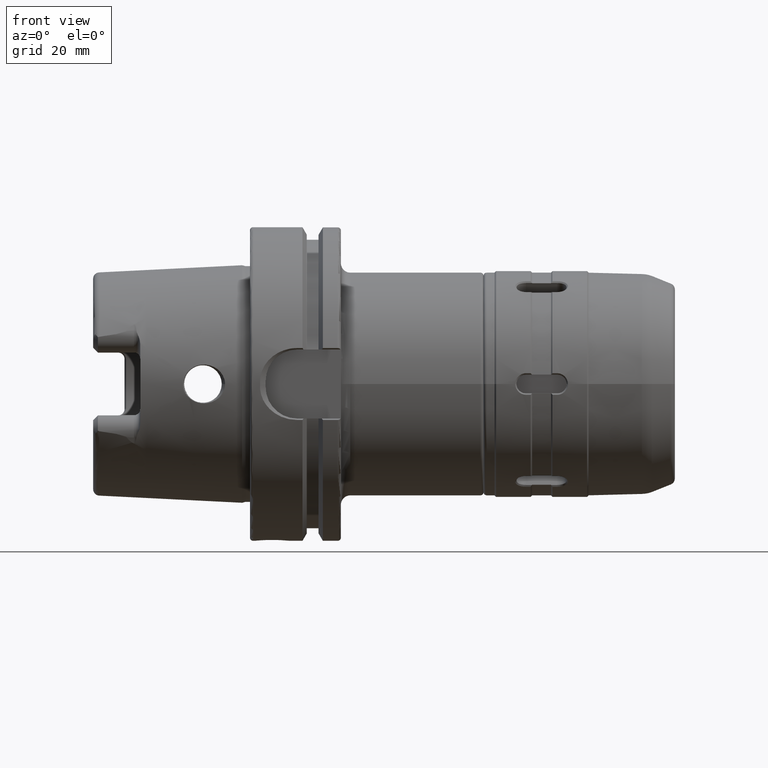
[diagram: clean part render]
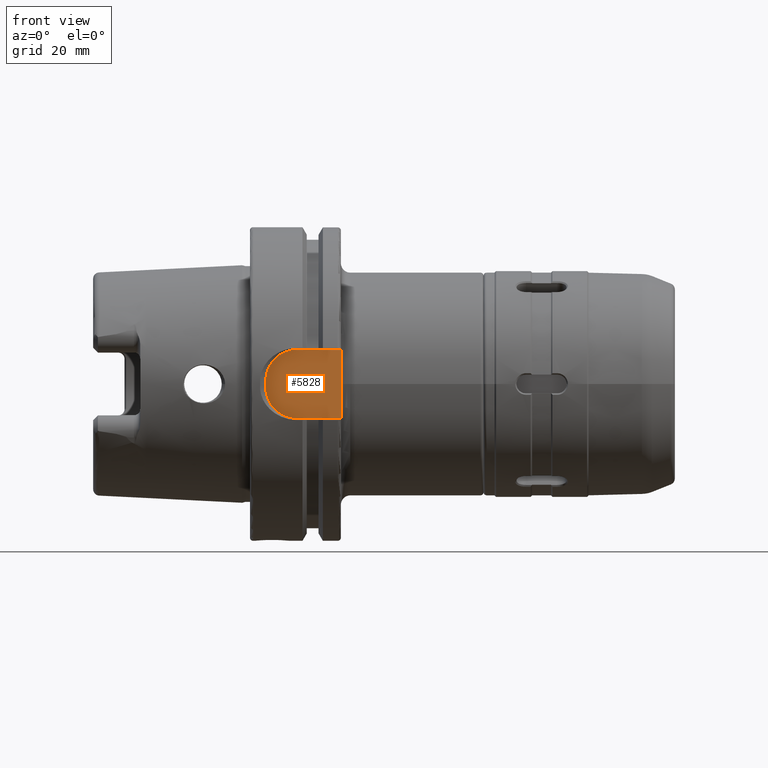
[diagram: same view with one face highlighted and labeled with its STEP entity id]
A machine part, front view. The second image highlights one B-rep face of the part: STEP entity #5828.
In plain terms, the highlighted planar face has unit normal (0, -1, 0).
Its self-contained STEP definition (entity closure, byte-faithful):
#1096=DIRECTION('',(0.E0,0.E0,1.E0));
#1097=VECTOR('',#1096,8.661417322835E-1);
#1098=CARTESIAN_POINT('',(1.141732283465E0,-1.732283464567E0,
-4.330708661417E-1));
#1099=LINE('',#1098,#1097);
#2284=CARTESIAN_POINT('',(5.905511811024E-1,-1.732283464567E0,
3.937007874016E-2));
#2285=DIRECTION('',(0.E0,-1.E0,0.E0));
#2286=DIRECTION('',(0.E0,0.E0,1.E0));
#2287=AXIS2_PLACEMENT_3D('',#2284,#2285,#2286);
#2289=DIRECTION('',(-1.E0,0.E0,0.E0));
#2290=VECTOR('',#2289,5.511811023622E-1);
#2291=CARTESIAN_POINT('',(1.141732283465E0,-1.732283464567E0,
4.330708661417E-1));
#2292=LINE('',#2291,#2290);
#2293=DIRECTION('',(1.E0,0.E0,0.E0));
#2294=VECTOR('',#2293,5.511811023622E-1);
#2295=CARTESIAN_POINT('',(5.905511811024E-1,-1.732283464567E0,
-4.330708661417E-1));
#2296=LINE('',#2295,#2294);
#2297=CARTESIAN_POINT('',(5.905511811024E-1,-1.732283464567E0,
-3.937007874016E-2));
#2298=DIRECTION('',(0.E0,-1.E0,0.E0));
#2299=DIRECTION('',(-1.E0,0.E0,0.E0));
#2300=AXIS2_PLACEMENT_3D('',#2297,#2298,#2299);
#2302=DIRECTION('',(0.E0,0.E0,-1.E0));
#2303=VECTOR('',#2302,7.874015748032E-2);
#2304=CARTESIAN_POINT('',(1.968503937008E-1,-1.732283464567E0,
3.937007874016E-2));
#2305=LINE('',#2304,#2303);
#2700=CARTESIAN_POINT('',(1.141732283465E0,-1.732283464567E0,
-4.330708661417E-1));
#2701=CARTESIAN_POINT('',(1.141732283465E0,-1.732283464567E0,
4.330708661417E-1));
#2702=VERTEX_POINT('',#2700);
#2703=VERTEX_POINT('',#2701);
#2720=CARTESIAN_POINT('',(5.905511811024E-1,-1.732283464567E0,
4.330708661417E-1));
#2721=CARTESIAN_POINT('',(1.968503937008E-1,-1.732283464567E0,
3.937007874016E-2));
#2722=VERTEX_POINT('',#2720);
#2723=VERTEX_POINT('',#2721);
#2724=CARTESIAN_POINT('',(1.968503937008E-1,-1.732283464567E0,
-3.937007874016E-2));
#2725=CARTESIAN_POINT('',(5.905511811024E-1,-1.732283464567E0,
-4.330708661417E-1));
#2726=VERTEX_POINT('',#2724);
#2727=VERTEX_POINT('',#2725);
#5811=CARTESIAN_POINT('',(0.E0,-1.732283464567E0,0.E0));
#5812=DIRECTION('',(0.E0,-1.E0,0.E0));
#5813=DIRECTION('',(1.E0,0.E0,0.E0));
#5814=AXIS2_PLACEMENT_3D('',#5811,#5812,#5813);
#5815=PLANE('',#5814);
#5817=ORIENTED_EDGE('',*,*,#5816,.F.);
#5818=ORIENTED_EDGE('',*,*,#5791,.F.);
#5819=ORIENTED_EDGE('',*,*,#4453,.F.);
#5821=ORIENTED_EDGE('',*,*,#5820,.F.);
#5823=ORIENTED_EDGE('',*,*,#5822,.F.);
#5825=ORIENTED_EDGE('',*,*,#5824,.F.);
#5826=EDGE_LOOP('',(#5817,#5818,#5819,#5821,#5823,#5825));
#5827=FACE_OUTER_BOUND('',#5826,.F.);
#5828=ADVANCED_FACE('',(#5827),#5815,.T.);
#2288=CIRCLE('',#2287,3.937007874016E-1);
#2301=CIRCLE('',#2300,3.937007874016E-1);
#4453=EDGE_CURVE('',#2702,#2703,#1099,.T.);
#5791=EDGE_CURVE('',#2703,#2722,#2292,.T.);
#5816=EDGE_CURVE('',#2722,#2723,#2288,.T.);
#5820=EDGE_CURVE('',#2727,#2702,#2296,.T.);
#5822=EDGE_CURVE('',#2726,#2727,#2301,.T.);
#5824=EDGE_CURVE('',#2723,#2726,#2305,.T.);